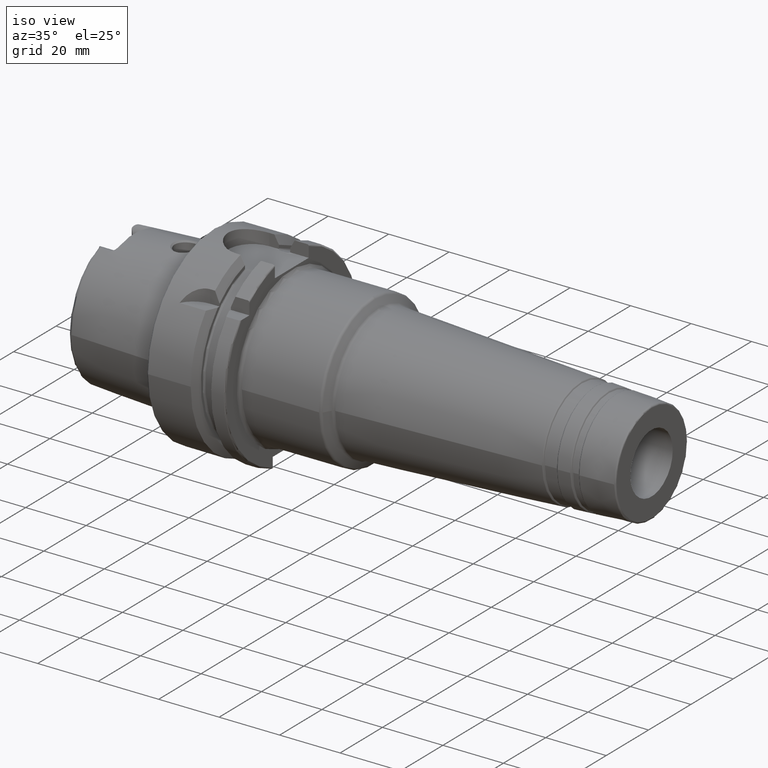
[diagram: clean part render]
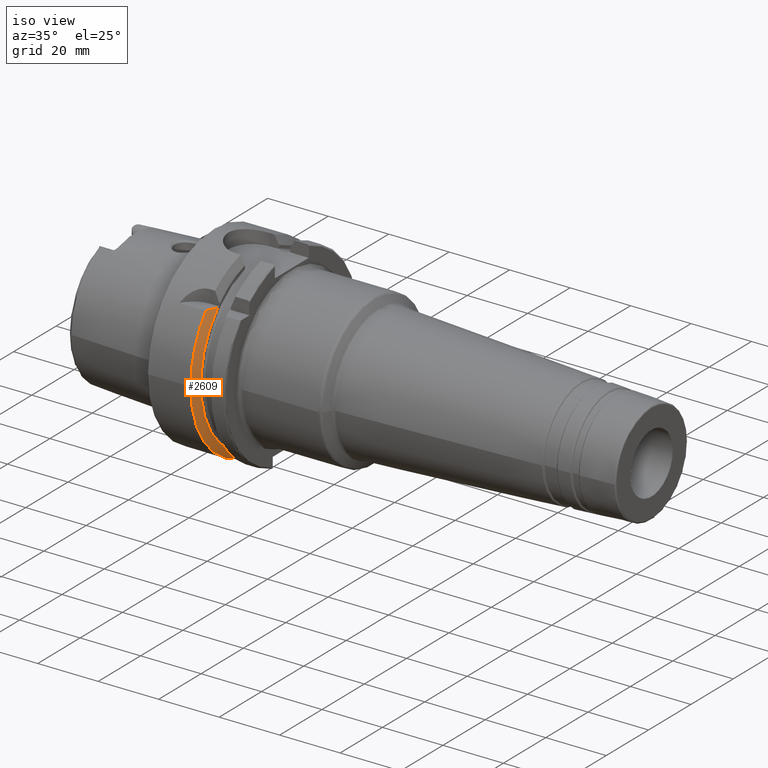
[diagram: same view with one face highlighted and labeled with its STEP entity id]
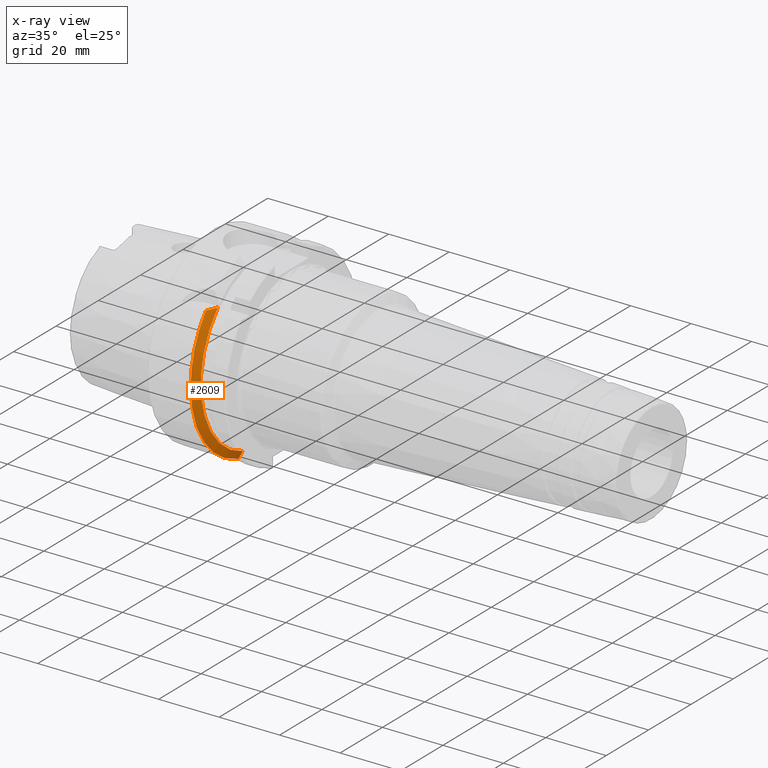
[diagram: x-ray of the same camera — body ghosted, the highlighted face saturated]
A machine part, iso view. The second image highlights one B-rep face of the part: STEP entity #2609.
The next image is the same camera in x-ray: the body ghosted, the highlighted face saturated — about 0% of this face is hidden behind the body in this view.
In plain terms, the highlighted conical surface has half-angle 60 deg.
Its self-contained STEP definition (entity closure, byte-faithful):
#18=(
BOUNDED_CURVE()
B_SPLINE_CURVE(2,(#4961,#4962,#4963),.UNSPECIFIED.,.F.,.F.)
B_SPLINE_CURVE_WITH_KNOTS((3,3),(0.,0.378858277140999),.UNSPECIFIED.)
CURVE()
GEOMETRIC_REPRESENTATION_ITEM()
RATIONAL_B_SPLINE_CURVE((1.,1.00166199353823,1.))
REPRESENTATION_ITEM('')
);
#21=(
BOUNDED_CURVE()
B_SPLINE_CURVE(2,(#5021,#5022,#5023),.UNSPECIFIED.,.F.,.F.)
B_SPLINE_CURVE_WITH_KNOTS((3,3),(0.,0.311314369989024),.UNSPECIFIED.)
CURVE()
GEOMETRIC_REPRESENTATION_ITEM()
RATIONAL_B_SPLINE_CURVE((1.,1.00102053193451,1.))
REPRESENTATION_ITEM('')
);
#431=CONICAL_SURFACE('',#2914,30.1987976320958,1.0471975511966);
#503=FACE_OUTER_BOUND('',#645,.T.);
#645=EDGE_LOOP('',(#2092,#2093,#2094,#2095,#2096));
#865=CIRCLE('',#2911,28.8975952641916);
#868=CIRCLE('',#2915,31.5);
#869=CIRCLE('',#2916,31.5);
#1131=VERTEX_POINT('',#4953);
#1134=VERTEX_POINT('',#4959);
#1141=VERTEX_POINT('',#5007);
#1145=VERTEX_POINT('',#5017);
#1146=VERTEX_POINT('',#5019);
#1481=EDGE_CURVE('',#1131,#1134,#18,.T.);
#1491=EDGE_CURVE('',#1131,#1141,#865,.T.);
#1496=EDGE_CURVE('',#1134,#1145,#868,.T.);
#1497=EDGE_CURVE('',#1145,#1146,#869,.T.);
#1498=EDGE_CURVE('',#1146,#1141,#21,.T.);
#2092=ORIENTED_EDGE('',*,*,#1481,.T.);
#2093=ORIENTED_EDGE('',*,*,#1496,.T.);
#2094=ORIENTED_EDGE('',*,*,#1497,.T.);
#2095=ORIENTED_EDGE('',*,*,#1498,.T.);
#2096=ORIENTED_EDGE('',*,*,#1491,.F.);
#2609=ADVANCED_FACE('',(#503),#431,.T.);
#2911=AXIS2_PLACEMENT_3D('',#5008,#3550,#3551);
#2914=AXIS2_PLACEMENT_3D('',#5016,#3558,#3559);
#2915=AXIS2_PLACEMENT_3D('',#5018,#3560,#3561);
#2916=AXIS2_PLACEMENT_3D('',#5020,#3562,#3563);
#3550=DIRECTION('center_axis',(1.,0.,0.));
#3551=DIRECTION('ref_axis',(0.,0.,-1.));
#3558=DIRECTION('center_axis',(-1.,0.,0.));
#3559=DIRECTION('ref_axis',(0.,-0.966819045705046,-0.255462194584608));
#3560=DIRECTION('center_axis',(1.,0.,0.));
#3561=DIRECTION('ref_axis',(0.,0.,-1.));
#3562=DIRECTION('center_axis',(1.,0.,0.));
#3563=DIRECTION('ref_axis',(0.,0.,-1.));
#4953=CARTESIAN_POINT('',(16.125,-20.8583559288126,20.));
#4959=CARTESIAN_POINT('',(14.6225009252407,-24.3361870472759,20.));
#4961=CARTESIAN_POINT('Ctrl Pts',(16.125,-20.8583559288126,20.));
#4962=CARTESIAN_POINT('Ctrl Pts',(15.4315609602332,-22.5223452916167,20.));
#4963=CARTESIAN_POINT('Ctrl Pts',(14.6225009252407,-24.3361870472759,20.));
#5007=CARTESIAN_POINT('',(16.125,-9.,-27.4603534582684));
#5008=CARTESIAN_POINT('Origin',(16.125,0.,0.));
#5016=CARTESIAN_POINT('Origin',(15.3737504626203,0.,0.));
#5017=CARTESIAN_POINT('',(14.6225009252407,-31.5,-3.85763741731416E-15));
#5018=CARTESIAN_POINT('Origin',(14.6225009252407,0.,0.));
#5019=CARTESIAN_POINT('',(14.6225009252407,-9.,-30.1869176962472));
#5020=CARTESIAN_POINT('Origin',(14.6225009252407,0.,0.));
#5021=CARTESIAN_POINT('Ctrl Pts',(14.6225009252407,-9.,-30.1869176962472));
#5022=CARTESIAN_POINT('Ctrl Pts',(15.4092825889741,-9.,-28.7648946319013));
#5023=CARTESIAN_POINT('Ctrl Pts',(16.125,-9.,-27.4603534582684));